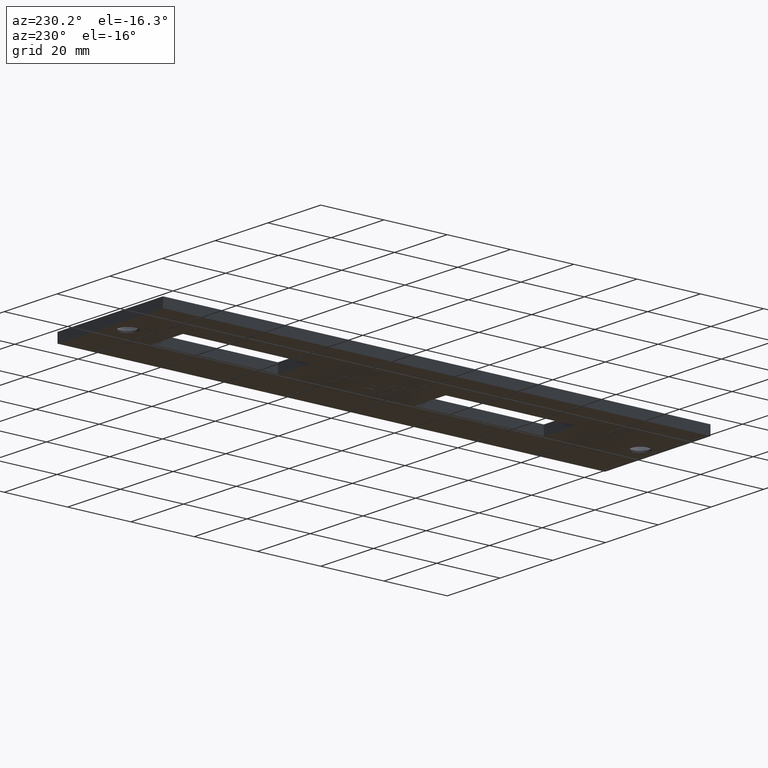
[diagram: clean part render]
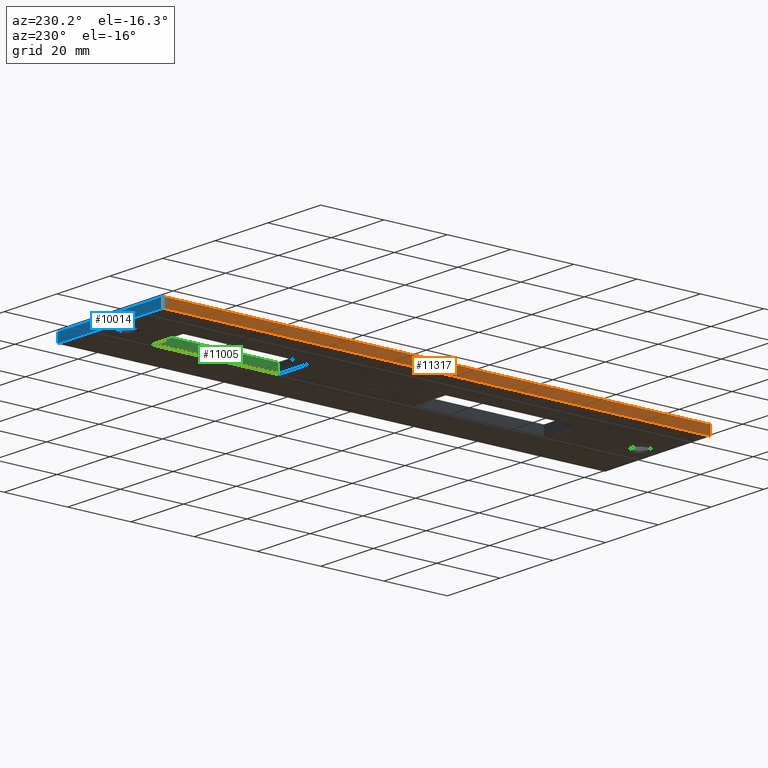
[diagram: same view with three faces highlighted in distinct colors, each labeled with its STEP entity id]
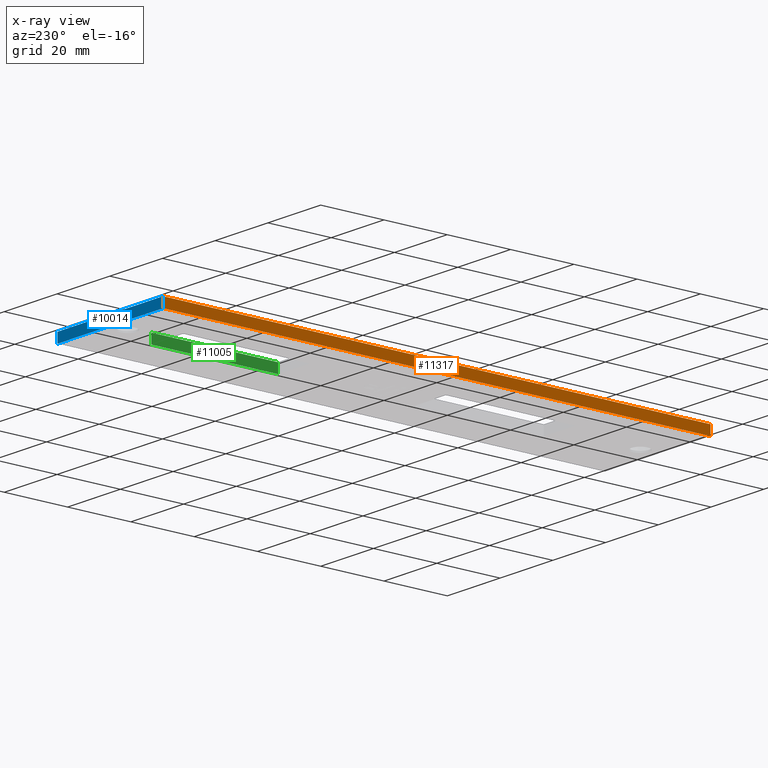
[diagram: x-ray of the same camera — body ghosted, the three highlighted faces saturated]
A machine part, auxiliary view with three faces highlighted in distinct colors.
The next image is the same camera in x-ray (body ghosted, the three faces saturated) — at least one of them is partly hidden behind the body in this view.
Their STEP definitions:

[orange] entity #11317 — the highlighted planar face has unit normal (1, 0, -0).
#479 = CARTESIAN_POINT ( 'NONE',  ( -19.99999999999999645, 86.50000000000000000, 3.000000000000000000 ) ) ;
#869 = VERTEX_POINT ( 'NONE', #4589 ) ;
#1028 = VERTEX_POINT ( 'NONE', #5074 ) ;
#1066 = EDGE_CURVE ( 'NONE', #10318, #11811, #4134, .T. ) ;
#1087 = AXIS2_PLACEMENT_3D ( 'NONE', #7816, #3193, #9024 ) ;
#1824 = CARTESIAN_POINT ( 'NONE',  ( -19.99999999999999645, 86.50000000000000000, 0.000000000000000000 ) ) ;
#2348 = DIRECTION ( 'NONE',  ( -0.000000000000000000, -0.000000000000000000, -1.000000000000000000 ) ) ;
#3093 = CARTESIAN_POINT ( 'NONE',  ( -19.99999999999999645, 86.50000000000000000, 3.000000000000000000 ) ) ;
#3193 = DIRECTION ( 'NONE',  ( 1.000000000000000000, 0.000000000000000000, -0.000000000000000000 ) ) ;
#3218 = VECTOR ( 'NONE', #7535, 1000.000000000000000 ) ;
#3815 = EDGE_CURVE ( 'NONE', #11811, #869, #12604, .T. ) ;
#3845 = LINE ( 'NONE', #14040, #11648 ) ;
#3880 = ORIENTED_EDGE ( 'NONE', *, *, #9707, .F. ) ;
#3884 = CARTESIAN_POINT ( 'NONE',  ( -19.99999999999999645, 86.50000000000000000, 3.000000000000000000 ) ) ;
#4134 = LINE ( 'NONE', #3884, #3218 ) ;
#4201 = CARTESIAN_POINT ( 'NONE',  ( -19.99999999999999645, 86.50000000000000000, 0.000000000000000000 ) ) ;
#4589 = CARTESIAN_POINT ( 'NONE',  ( -19.99999999999999645, -86.50000000000000000, 0.000000000000000000 ) ) ;
#5074 = CARTESIAN_POINT ( 'NONE',  ( -19.99999999999999645, -86.50000000000000000, 3.000000000000000000 ) ) ;
#6620 = DIRECTION ( 'NONE',  ( 0.000000000000000000, -1.000000000000000000, 0.000000000000000000 ) ) ;
#7044 = VECTOR ( 'NONE', #13732, 1000.000000000000000 ) ;
#7535 = DIRECTION ( 'NONE',  ( -0.000000000000000000, -0.000000000000000000, -1.000000000000000000 ) ) ;
#7816 = CARTESIAN_POINT ( 'NONE',  ( -19.99999999999999645, 86.50000000000000000, 3.000000000000000000 ) ) ;
#7922 = PLANE ( 'NONE',  #1087 ) ;
#9024 = DIRECTION ( 'NONE',  ( -0.000000000000000000, 0.000000000000000000, -1.000000000000000000 ) ) ;
#9278 = EDGE_LOOP ( 'NONE', ( #10537, #11806, #3880, #15124 ) ) ;
#9707 = EDGE_CURVE ( 'NONE', #10318, #1028, #11497, .T. ) ;
#10318 = VERTEX_POINT ( 'NONE', #479 ) ;
#10537 = ORIENTED_EDGE ( 'NONE', *, *, #3815, .T. ) ;
#11317 = ADVANCED_FACE ( 'NONE', ( #13146 ), #7922, .F. ) ;
#11497 = LINE ( 'NONE', #3093, #14501 ) ;
#11648 = VECTOR ( 'NONE', #2348, 1000.000000000000000 ) ;
#11806 = ORIENTED_EDGE ( 'NONE', *, *, #11978, .F. ) ;
#11811 = VERTEX_POINT ( 'NONE', #4201 ) ;
#11978 = EDGE_CURVE ( 'NONE', #1028, #869, #3845, .T. ) ;
#12604 = LINE ( 'NONE', #1824, #7044 ) ;
#13146 = FACE_OUTER_BOUND ( 'NONE', #9278, .T. ) ;
#13732 = DIRECTION ( 'NONE',  ( 0.000000000000000000, -1.000000000000000000, 0.000000000000000000 ) ) ;
#14040 = CARTESIAN_POINT ( 'NONE',  ( -19.99999999999999645, -86.50000000000000000, 3.000000000000000000 ) ) ;
#14501 = VECTOR ( 'NONE', #6620, 1000.000000000000000 ) ;
#15124 = ORIENTED_EDGE ( 'NONE', *, *, #1066, .T. ) ;

[blue] entity #10014 — the highlighted planar face has unit normal (0, -1, 0).
#287 = DIRECTION ( 'NONE',  ( 0.000000000000000000, -1.000000000000000000, 0.000000000000000000 ) ) ;
#479 = CARTESIAN_POINT ( 'NONE',  ( -19.99999999999999645, 86.50000000000000000, 3.000000000000000000 ) ) ;
#1066 = EDGE_CURVE ( 'NONE', #10318, #11811, #4134, .T. ) ;
#1201 = DIRECTION ( 'NONE',  ( -1.000000000000000000, -0.000000000000000000, -0.000000000000000000 ) ) ;
#1517 = PLANE ( 'NONE',  #1662 ) ;
#1570 = CARTESIAN_POINT ( 'NONE',  ( -19.99999999999999645, 86.50000000000000000, 3.000000000000000000 ) ) ;
#1662 = AXIS2_PLACEMENT_3D ( 'NONE', #1570, #287, #8565 ) ;
#2125 = EDGE_LOOP ( 'NONE', ( #10289, #15422, #11023, #3837 ) ) ;
#3218 = VECTOR ( 'NONE', #7535, 1000.000000000000000 ) ;
#3704 = FACE_OUTER_BOUND ( 'NONE', #2125, .T. ) ;
#3837 = ORIENTED_EDGE ( 'NONE', *, *, #12890, .T. ) ;
#3884 = CARTESIAN_POINT ( 'NONE',  ( -19.99999999999999645, 86.50000000000000000, 3.000000000000000000 ) ) ;
#4134 = LINE ( 'NONE', #3884, #3218 ) ;
#4201 = CARTESIAN_POINT ( 'NONE',  ( -19.99999999999999645, 86.50000000000000000, 0.000000000000000000 ) ) ;
#5039 = DIRECTION ( 'NONE',  ( -0.000000000000000000, -0.000000000000000000, -1.000000000000000000 ) ) ;
#5274 = LINE ( 'NONE', #13258, #8296 ) ;
#5964 = DIRECTION ( 'NONE',  ( -1.000000000000000000, -0.000000000000000000, -0.000000000000000000 ) ) ;
#6113 = CARTESIAN_POINT ( 'NONE',  ( -19.99999999999999645, 86.50000000000000000, 0.000000000000000000 ) ) ;
#6567 = CARTESIAN_POINT ( 'NONE',  ( 20.00000000000000355, 86.50000000000000000, 3.000000000000000000 ) ) ;
#6598 = VECTOR ( 'NONE', #5964, 1000.000000000000000 ) ;
#7238 = CARTESIAN_POINT ( 'NONE',  ( -19.99999999999999645, 86.50000000000000000, 3.000000000000000000 ) ) ;
#7535 = DIRECTION ( 'NONE',  ( -0.000000000000000000, -0.000000000000000000, -1.000000000000000000 ) ) ;
#8296 = VECTOR ( 'NONE', #5039, 1000.000000000000000 ) ;
#8565 = DIRECTION ( 'NONE',  ( 0.000000000000000000, -0.000000000000000000, -1.000000000000000000 ) ) ;
#10014 = ADVANCED_FACE ( 'NONE', ( #3704 ), #1517, .F. ) ;
#10289 = ORIENTED_EDGE ( 'NONE', *, *, #12071, .T. ) ;
#10318 = VERTEX_POINT ( 'NONE', #479 ) ;
#11023 = ORIENTED_EDGE ( 'NONE', *, *, #14377, .F. ) ;
#11259 = VERTEX_POINT ( 'NONE', #13587 ) ;
#11629 = LINE ( 'NONE', #7238, #14617 ) ;
#11811 = VERTEX_POINT ( 'NONE', #4201 ) ;
#12071 = EDGE_CURVE ( 'NONE', #11259, #11811, #12755, .T. ) ;
#12755 = LINE ( 'NONE', #6113, #6598 ) ;
#12890 = EDGE_CURVE ( 'NONE', #14648, #11259, #5274, .T. ) ;
#13258 = CARTESIAN_POINT ( 'NONE',  ( 20.00000000000000355, 86.50000000000000000, 3.000000000000000000 ) ) ;
#13587 = CARTESIAN_POINT ( 'NONE',  ( 20.00000000000000355, 86.50000000000000000, 0.000000000000000000 ) ) ;
#14377 = EDGE_CURVE ( 'NONE', #14648, #10318, #11629, .T. ) ;
#14617 = VECTOR ( 'NONE', #1201, 1000.000000000000000 ) ;
#14648 = VERTEX_POINT ( 'NONE', #6567 ) ;
#15422 = ORIENTED_EDGE ( 'NONE', *, *, #1066, .F. ) ;

[green] entity #11005 — the highlighted planar face has unit normal (-1, -0, 0).
#62 = CARTESIAN_POINT ( 'NONE',  ( 5.999999999999997335, 66.49999999999998579, 3.000000000000000000 ) ) ;
#255 = ORIENTED_EDGE ( 'NONE', *, *, #14023, .F. ) ;
#703 = LINE ( 'NONE', #62, #11866 ) ;
#808 = DIRECTION ( 'NONE',  ( -0.000000000000000000, -0.000000000000000000, -1.000000000000000000 ) ) ;
#1545 = EDGE_CURVE ( 'NONE', #8178, #3995, #12681, .T. ) ;
#2541 = EDGE_LOOP ( 'NONE', ( #255, #11428, #14115, #3596 ) ) ;
#3267 = AXIS2_PLACEMENT_3D ( 'NONE', #6062, #8673, #8574 ) ;
#3319 = CARTESIAN_POINT ( 'NONE',  ( 5.999999999999997335, 68.49999999999998579, 0.000000000000000000 ) ) ;
#3479 = VERTEX_POINT ( 'NONE', #10745 ) ;
#3596 = ORIENTED_EDGE ( 'NONE', *, *, #5225, .F. ) ;
#3649 = DIRECTION ( 'NONE',  ( -1.141265444721583757E-16, 1.000000000000000000, -0.000000000000000000 ) ) ;
#3995 = VERTEX_POINT ( 'NONE', #13367 ) ;
#4494 = EDGE_CURVE ( 'NONE', #8178, #3479, #703, .T. ) ;
#4799 = FACE_OUTER_BOUND ( 'NONE', #2541, .T. ) ;
#5225 = EDGE_CURVE ( 'NONE', #9798, #3479, #13897, .T. ) ;
#5244 = CARTESIAN_POINT ( 'NONE',  ( 5.999999999999997335, 66.49999999999998579, 0.000000000000000000 ) ) ;
#5580 = DIRECTION ( 'NONE',  ( 0.000000000000000000, 0.000000000000000000, 1.000000000000000000 ) ) ;
#5628 = VECTOR ( 'NONE', #808, 1000.000000000000000 ) ;
#6062 = CARTESIAN_POINT ( 'NONE',  ( 5.999999999999997335, 66.49999999999998579, 3.000000000000000000 ) ) ;
#7936 = VECTOR ( 'NONE', #5580, 1000.000000000000000 ) ;
#8178 = VERTEX_POINT ( 'NONE', #9705 ) ;
#8574 = DIRECTION ( 'NONE',  ( 1.141265444721583757E-16, -1.000000000000000000, 0.000000000000000000 ) ) ;
#8654 = DIRECTION ( 'NONE',  ( -1.141265444721583757E-16, 1.000000000000000000, -0.000000000000000000 ) ) ;
#8673 = DIRECTION ( 'NONE',  ( -1.000000000000000000, -1.141265444721583757E-16, 0.000000000000000000 ) ) ;
#9705 = CARTESIAN_POINT ( 'NONE',  ( 6.000000000000001776, 28.49999999999998934, 3.000000000000000000 ) ) ;
#9798 = VERTEX_POINT ( 'NONE', #3319 ) ;
#10745 = CARTESIAN_POINT ( 'NONE',  ( 5.999999999999997335, 68.49999999999998579, 3.000000000000000000 ) ) ;
#10868 = VECTOR ( 'NONE', #8654, 1000.000000000000000 ) ;
#11005 = ADVANCED_FACE ( 'NONE', ( #4799 ), #13353, .T. ) ;
#11428 = ORIENTED_EDGE ( 'NONE', *, *, #1545, .F. ) ;
#11509 = CARTESIAN_POINT ( 'NONE',  ( 5.999999999999997335, 68.49999999999998579, 0.000000000000000000 ) ) ;
#11866 = VECTOR ( 'NONE', #3649, 1000.000000000000000 ) ;
#12681 = LINE ( 'NONE', #13972, #5628 ) ;
#12914 = LINE ( 'NONE', #5244, #10868 ) ;
#13353 = PLANE ( 'NONE',  #3267 ) ;
#13367 = CARTESIAN_POINT ( 'NONE',  ( 6.000000000000001776, 28.49999999999998934, 0.000000000000000000 ) ) ;
#13897 = LINE ( 'NONE', #11509, #7936 ) ;
#13972 = CARTESIAN_POINT ( 'NONE',  ( 6.000000000000001776, 28.49999999999998934, 3.000000000000000000 ) ) ;
#14023 = EDGE_CURVE ( 'NONE', #3995, #9798, #12914, .T. ) ;
#14115 = ORIENTED_EDGE ( 'NONE', *, *, #4494, .T. ) ;